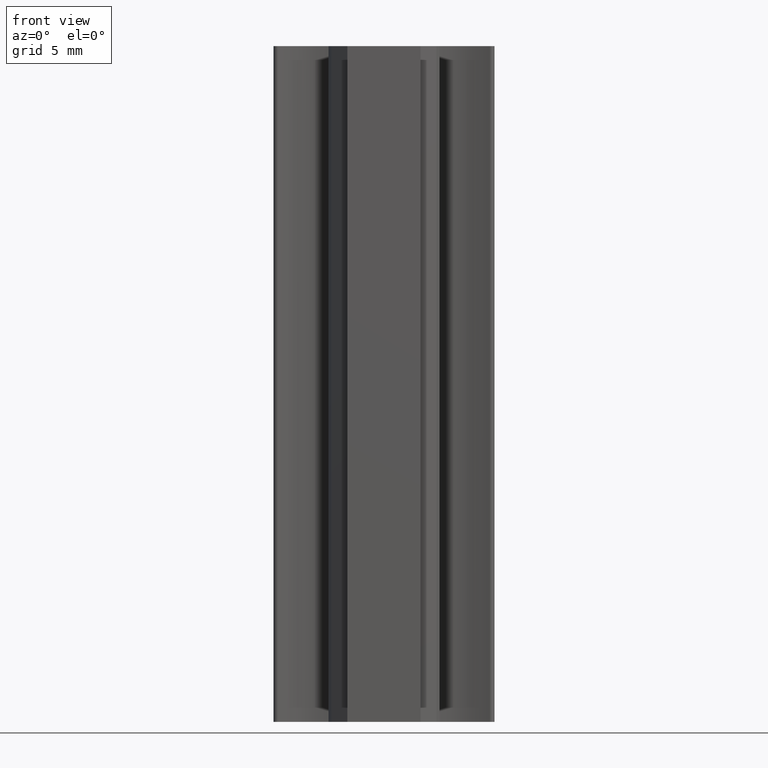
[diagram: clean part render]
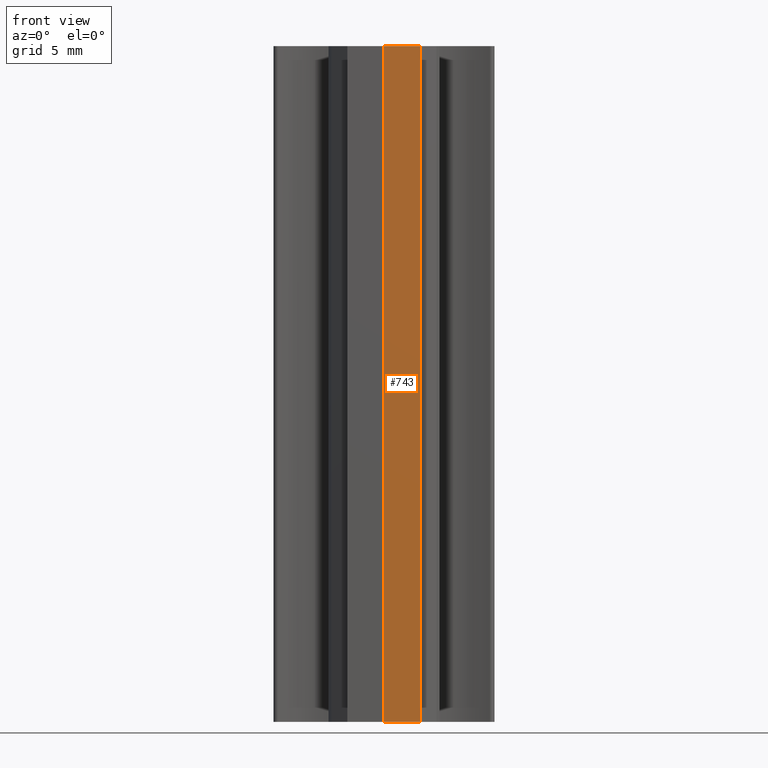
[diagram: same view with one face highlighted and labeled with its STEP entity id]
A machine part, front view. The second image highlights one B-rep face of the part: STEP entity #743.
In plain terms, the highlighted planar face has unit normal (0, -1, 0).
Its self-contained STEP definition (entity closure, byte-faithful):
#687=CARTESIAN_POINT('',(0.0,0.0,0.0));
#688=VERTEX_POINT('',#687);
#695=CARTESIAN_POINT('',(0.0,0.0,50.0));
#696=VERTEX_POINT('',#695);
#697=CARTESIAN_POINT('',(0.0,0.0,0.0));
#698=DIRECTION('',(0.0,0.0,1.0));
#699=VECTOR('',#698,50.0);
#700=LINE('',#697,#699);
#701=EDGE_CURVE('',#688,#696,#700,.T.);
#713=CARTESIAN_POINT('',(0.0,0.0,0.0));
#714=DIRECTION('',(0.0,-1.0,0.0));
#715=DIRECTION('',(1.0,0.0,0.0));
#716=AXIS2_PLACEMENT_3D('',#713,#714,#715);
#717=PLANE('',#716);
#718=CARTESIAN_POINT('',(2.707834773493687,0.0,0.0));
#719=VERTEX_POINT('',#718);
#720=CARTESIAN_POINT('',(0.0,0.0,0.0));
#721=DIRECTION('',(1.0,0.0,0.0));
#722=VECTOR('',#721,2.707834773493687);
#723=LINE('',#720,#722);
#724=EDGE_CURVE('',#688,#719,#723,.T.);
#725=ORIENTED_EDGE('',*,*,#724,.T.);
#726=CARTESIAN_POINT('',(2.707834773493687,0.0,50.0));
#727=VERTEX_POINT('',#726);
#728=CARTESIAN_POINT('',(2.707834773493687,0.0,0.0));
#729=DIRECTION('',(0.0,0.0,1.0));
#730=VECTOR('',#729,50.0);
#731=LINE('',#728,#730);
#732=EDGE_CURVE('',#719,#727,#731,.T.);
#733=ORIENTED_EDGE('',*,*,#732,.T.);
#734=CARTESIAN_POINT('',(0.0,0.0,50.0));
#735=DIRECTION('',(1.0,0.0,0.0));
#736=VECTOR('',#735,2.707834773493687);
#737=LINE('',#734,#736);
#738=EDGE_CURVE('',#696,#727,#737,.T.);
#739=ORIENTED_EDGE('',*,*,#738,.F.);
#740=ORIENTED_EDGE('',*,*,#701,.F.);
#741=EDGE_LOOP('',(#725,#733,#739,#740));
#742=FACE_OUTER_BOUND('',#741,.T.);
#743=ADVANCED_FACE('',(#742),#717,.T.);